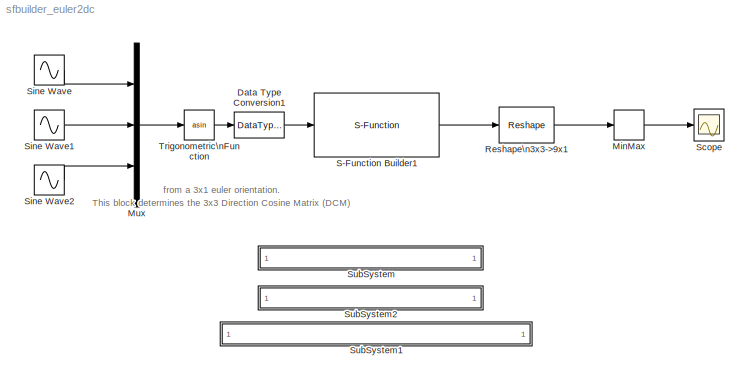
MODEL sfbuilder_euler2dc
KIND model
BLOCK [DataTypeConversion] Data Type Conversion1
  OutDataTypeMode = single
BLOCK [MinMax] MinMax
  Function = max
  Ports = [1, 1]
  ZeroCross = off
BLOCK [Mux] Mux
  DisplayOption = bar
  Inputs = 3
  Ports = [3, 1]
BLOCK [Reference] Reshape\n3x3->9x1  REF=simulink/Math\nOperations/Reshape
  OutputDimensionality = Column vector
  OutputDimensions = [3,3]
  Ports = [1, 1]
  SourceBlock = simulink/Math\nOperations/Reshape
  SourceType = Reshape
BLOCK [S-Function] S-Function Builder1
  CopyFcn = set_param(gcb,'LinkStatus','none')
  FunctionName = euler2dc
  MaskDisplay = plot(val(:,1),val(:,2))\ndisp(sys)\nport_label('input',1,'worke')\nport_label('output',1,'dircos')
  MaskIconFrame = on
  MaskIconOpaque = on
  MaskIconRotate = none
  MaskIconUnits = normalized
  MaskInitialization = val = [[.9  0.75 0.75 1 1 .9 .9 1]',[1 1 0.75 0.75 .9 .9 1 .9]'];\nsys = get_param(gcb,'FunctionName');
  MaskType = S-Function Builder
  OpenFcn = sfunctionwizard(gcbh)
  Ports = [1, 1]
  SFunctionModules = euler2dc_wrapper
  WizardData = DataTag0
BLOCK [Scope] Scope
  DataFormat = StructureWithTime
  NumInputPorts = 1
  Ports = [1]
  TimeRange = 10
  YMax = 1
  YMin = 0.6
BLOCK [Sin] Sine Wave
  Ports = [0, 1]
  SampleTime = 0
  SineType = Time based
BLOCK [Sin] Sine Wave1
  Phase = 1
  Ports = [0, 1]
  SampleTime = 0
  SineType = Time based
BLOCK [Sin] Sine Wave2
  Phase = 2
  Ports = [0, 1]
  SampleTime = 0
  SineType = Time based
BLOCK [SubSystem] SubSystem
  AttributesFormatString = \\n
  MaskDisplay = disp('matlabroot<path>');
  MaskIconFrame = on
  MaskIconOpaque = on
  MaskIconRotate = none
  MaskIconUnits = autoscale
  MinAlgLoopOccurrences = off
  OpenFcn = edit(fullfile(matlabroot,'simulink','src','euler2dc.c'))
  Ports = []
  PropExecContextAcrossSSBoundary = on
  RTWSystemCode = Auto
  TreatAsAtomicUnit = off
BLOCK [SubSystem] SubSystem1
  AttributesFormatString = \\n
  MaskDisplay = disp('matlabroot<path>');
  MaskIconFrame = on
  MaskIconOpaque = on
  MaskIconRotate = none
  MaskIconUnits = autoscale
  MinAlgLoopOccurrences = off
  OpenFcn = edit(fullfile(matlabroot,'toolbox','simulink','blocks','tlc_c','euler2dc.tlc'))
  Ports = []
  PropExecContextAcrossSSBoundary = on
  RTWSystemCode = Auto
  TreatAsAtomicUnit = off
BLOCK [SubSystem] SubSystem2
  AttributesFormatString = \\n\\n
  MaskDisplay = disp('matlabroot<path>');
  MaskIconFrame = on
  MaskIconOpaque = on
  MaskIconRotate = none
  MaskIconUnits = autoscale
  MinAlgLoopOccurrences = off
  OpenFcn = edit(fullfile(matlabroot,'simulink','src','euler2dc_wrapper.c'))
  Ports = []
  PropExecContextAcrossSSBoundary = on
  RTWSystemCode = Auto
  TreatAsAtomicUnit = off
BLOCK [Trigonometry] Trigonometric\nFunction
  Operator = asin
  Ports = [1, 1]
ANNOTATION (root): This block determines the 3x3 Direction Cosine Matrix (DCM) \nfrom a 3x1 euler orientation.
LINE Data Type Conversion1:1 -> S-Function Builder1:1
LINE MinMax:1 -> Scope:1
LINE Mux:1 -> Trigonometric\nFunction:1
LINE Reshape\n3x3->9x1:1 -> MinMax:1
LINE S-Function Builder1:1 -> Reshape\n3x3->9x1:1
LINE Sine Wave1:1 -> Mux:2
LINE Sine Wave2:1 -> Mux:3
LINE Sine Wave:1 -> Mux:1
LINE Trigonometric\nFunction:1 -> Data Type Conversion1:1
note: 3 file-system paths scrubbed to <path> (not preserved elsewhere — flat text is the only slx artifact)
